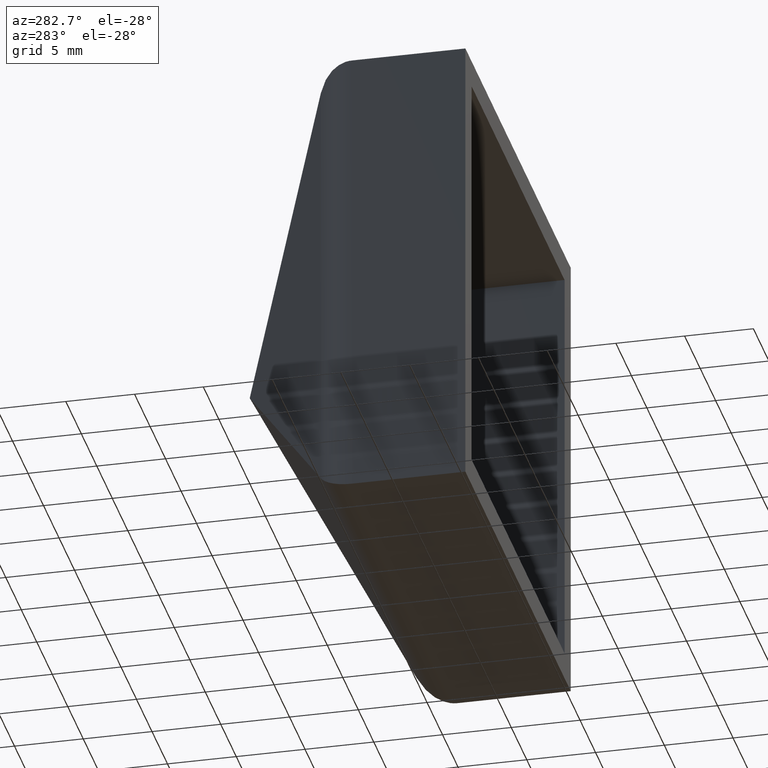
[diagram: clean part render]
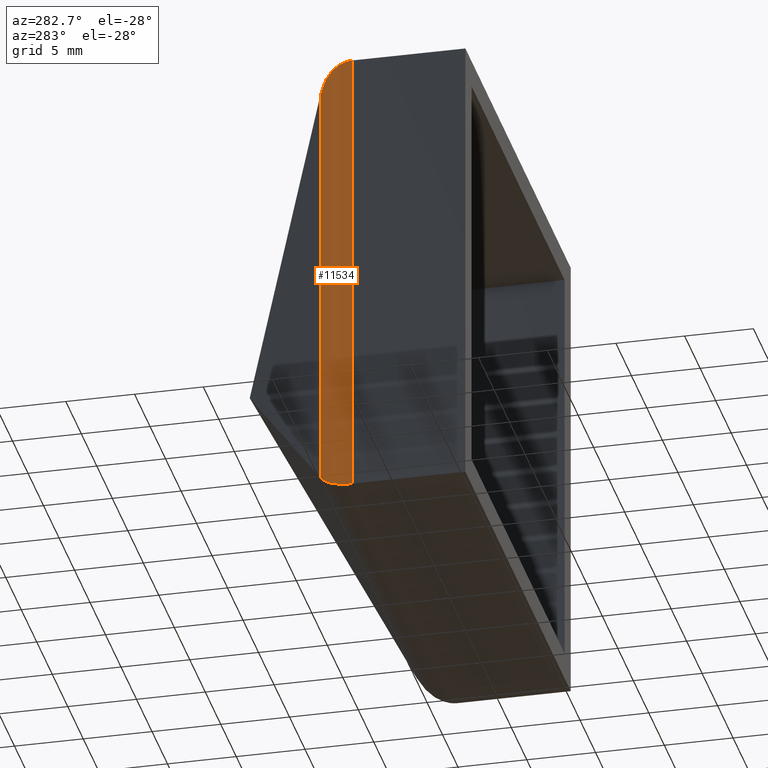
[diagram: same view with one face highlighted and labeled with its STEP entity id]
A machine part, auxiliary view. The second image highlights one B-rep face of the part: STEP entity #11534.
In plain terms, the highlighted cylindrical surface (partial cylindrical patch) has radius 3 mm, axis along (-0, -0, 1).
Its self-contained STEP definition (entity closure, byte-faithful):
#173 = CYLINDRICAL_SURFACE ( 'NONE', #3022, 2.999999999999995559 ) ;
#377 = CARTESIAN_POINT ( 'NONE',  ( -16.99999999999998579, 9.354626585957650065, 17.00000000000001066 ) ) ;
#564 = VERTEX_POINT ( 'NONE', #9040 ) ;
#994 = CARTESIAN_POINT ( 'NONE',  ( -15.46517665763734506, 10.85901325649586724, -15.46517665763733795 ) ) ;
#1063 = LINE ( 'NONE', #12206, #9106 ) ;
#1242 = CARTESIAN_POINT ( 'NONE',  ( -15.46517665763734506, 10.85901325649586724, -15.46517665763733795 ) ) ;
#1607 =( BOUNDED_CURVE ( )  B_SPLINE_CURVE ( 3, ( #7062, #3949, #377, #9964 ),
 .UNSPECIFIED., .F., .T. ) 
 B_SPLINE_CURVE_WITH_KNOTS ( ( 4, 4 ),
 ( 5.222635314954896302, 6.283185307179586232 ),
 .UNSPECIFIED. ) 
 CURVE ( )  GEOMETRIC_REPRESENTATION_ITEM ( )  RATIONAL_B_SPLINE_CURVE ( ( 1.000000000000000000, 0.9084453454593675037, 0.9084453454593675037, 1.000000000000000000 ) ) 
 REPRESENTATION_ITEM ( '' )  );
#2077 = CARTESIAN_POINT ( 'NONE',  ( -17.00000000000002132, 8.241140577790009303, -16.99999999999998579 ) ) ;
#2200 = ORIENTED_EDGE ( 'NONE', *, *, #8107, .F. ) ;
#2245 = CARTESIAN_POINT ( 'NONE',  ( -15.46517665763733618, 10.85901325649587257, 15.46517665763736815 ) ) ;
#3022 = AXIS2_PLACEMENT_3D ( 'NONE', #12153, #8383, #3643 ) ;
#3229 = EDGE_CURVE ( 'NONE', #11358, #564, #7117, .T. ) ;
#3643 = DIRECTION ( 'NONE',  ( 1.000000000000000000, 0.000000000000000000, 0.000000000000000000 ) ) ;
#3949 = CARTESIAN_POINT ( 'NONE',  ( -16.43683152393845148, 10.31519535390486730, 16.43683152393847280 ) ) ;
#4759 = DIRECTION ( 'NONE',  ( -0.000000000000000000, -0.000000000000000000, 1.000000000000000000 ) ) ;
#5373 = ORIENTED_EDGE ( 'NONE', *, *, #9309, .F. ) ;
#6730 = EDGE_LOOP ( 'NONE', ( #5373, #8058, #8707, #2200 ) ) ;
#6827 = CARTESIAN_POINT ( 'NONE',  ( -17.00000000000002132, 8.241140577790009303, -16.99999999999998579 ) ) ;
#7062 = CARTESIAN_POINT ( 'NONE',  ( -15.46517665763733618, 10.85901325649587257, 15.46517665763736815 ) ) ;
#7117 = LINE ( 'NONE', #8630, #9661 ) ;
#7496 = VERTEX_POINT ( 'NONE', #2245 ) ;
#8058 = ORIENTED_EDGE ( 'NONE', *, *, #3229, .T. ) ;
#8107 = EDGE_CURVE ( 'NONE', #9934, #7496, #1063, .T. ) ;
#8383 = DIRECTION ( 'NONE',  ( -0.000000000000000000, -0.000000000000000000, 1.000000000000000000 ) ) ;
#8630 = CARTESIAN_POINT ( 'NONE',  ( -16.99999999999999289, 8.241140577790009303, -17.00000000000000000 ) ) ;
#8707 = ORIENTED_EDGE ( 'NONE', *, *, #10988, .F. ) ;
#9040 = CARTESIAN_POINT ( 'NONE',  ( -17.00000000000001421, 8.241140577790009303, 17.00000000000001421 ) ) ;
#9106 = VECTOR ( 'NONE', #10413, 1000.000000000000000 ) ;
#9137 = FACE_OUTER_BOUND ( 'NONE', #6730, .T. ) ;
#9309 = EDGE_CURVE ( 'NONE', #11358, #9934, #9846, .T. ) ;
#9661 = VECTOR ( 'NONE', #4759, 1000.000000000000000 ) ;
#9846 =( BOUNDED_CURVE ( )  B_SPLINE_CURVE ( 3, ( #2077, #11626, #11754, #994 ),
 .UNSPECIFIED., .F., .F. ) 
 B_SPLINE_CURVE_WITH_KNOTS ( ( 4, 4 ),
 ( 3.141592653589793116, 4.202142645814481270 ),
 .UNSPECIFIED. ) 
 CURVE ( )  GEOMETRIC_REPRESENTATION_ITEM ( )  RATIONAL_B_SPLINE_CURVE ( ( 1.000000000000000000, 0.9084453454593678368, 0.9084453454593678368, 1.000000000000000000 ) ) 
 REPRESENTATION_ITEM ( '' )  );
#9934 = VERTEX_POINT ( 'NONE', #1242 ) ;
#9964 = CARTESIAN_POINT ( 'NONE',  ( -17.00000000000001421, 8.241140577790009303, 17.00000000000001421 ) ) ;
#10413 = DIRECTION ( 'NONE',  ( -0.000000000000000000, -0.000000000000000000, 1.000000000000000000 ) ) ;
#10988 = EDGE_CURVE ( 'NONE', #7496, #564, #1607, .T. ) ;
#11358 = VERTEX_POINT ( 'NONE', #6827 ) ;
#11534 = ADVANCED_FACE ( 'NONE', ( #9137 ), #173, .T. ) ;
#11626 = CARTESIAN_POINT ( 'NONE',  ( -16.99999999999998579, 9.354626585957648288, -16.99999999999997868 ) ) ;
#11754 = CARTESIAN_POINT ( 'NONE',  ( -16.43683152393845504, 10.31519535390486197, -16.43683152393844793 ) ) ;
#12153 = CARTESIAN_POINT ( 'NONE',  ( -13.99999999999999112, 8.241140577790009303, -17.00000000000000000 ) ) ;
#12206 = CARTESIAN_POINT ( 'NONE',  ( -15.46517665763734506, 10.85901325649586724, -17.00000000000000000 ) ) ;